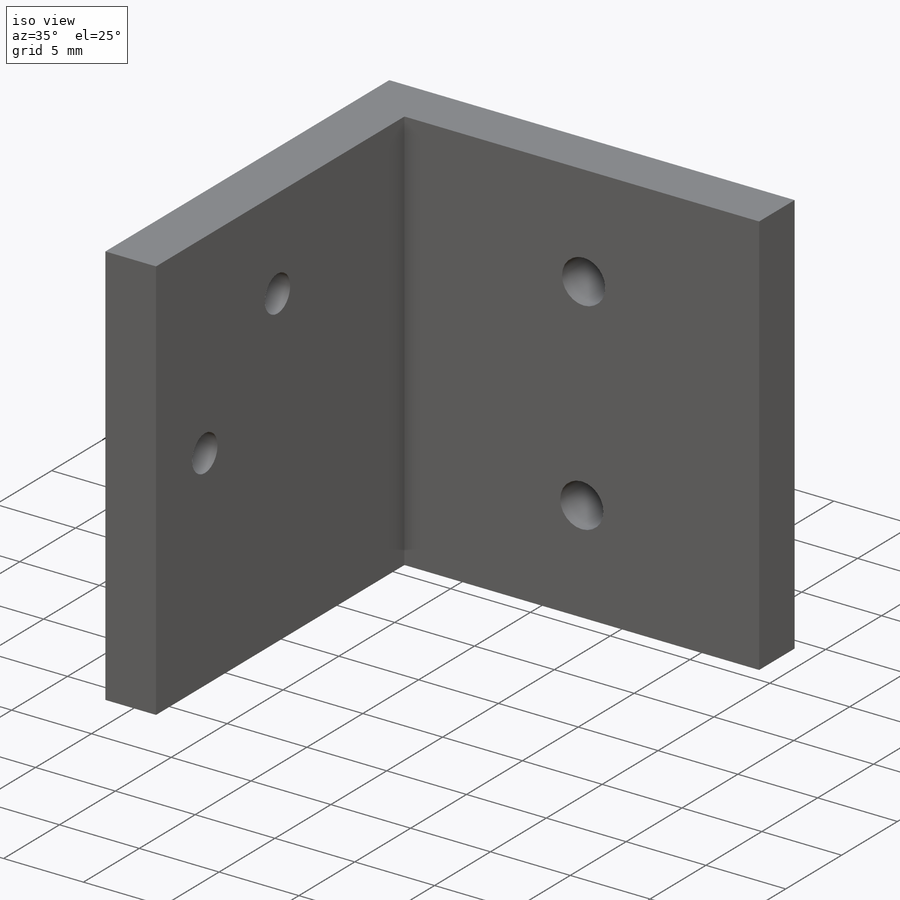
[diagram: iso view]
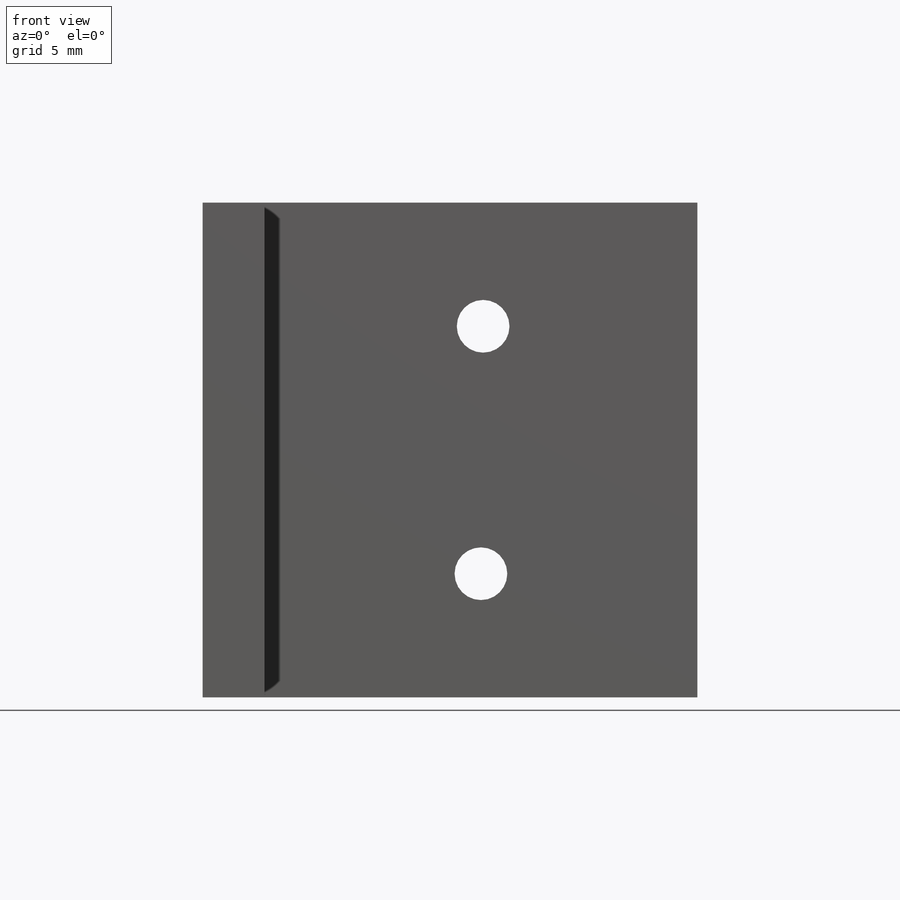
[diagram: front view]
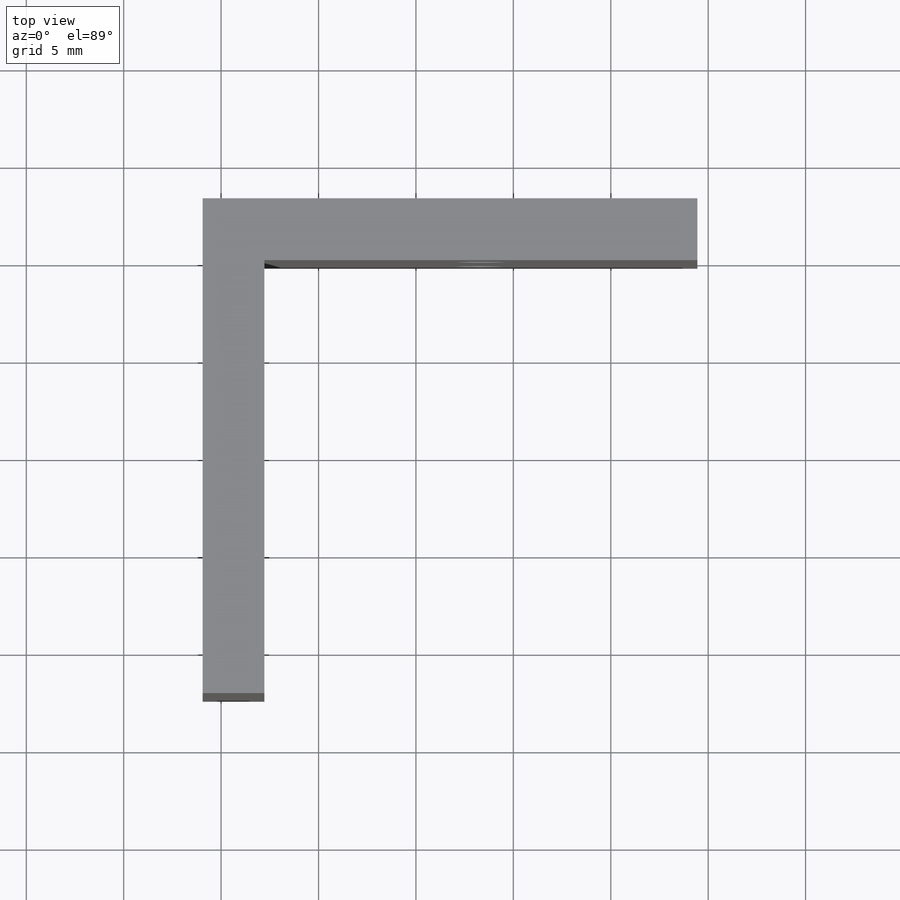
[diagram: top view]
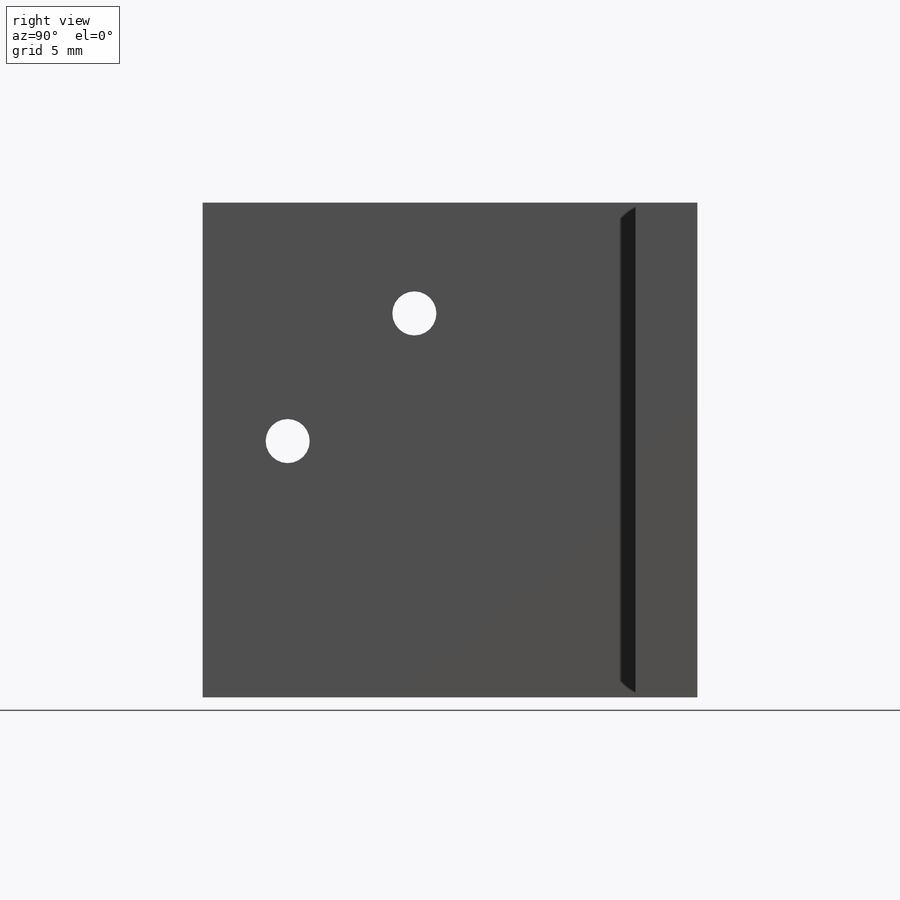
[diagram: right view]
SOLIDWORKS PART (.sldprt)
format: sldprt  version: not decoded by parser v0  size: 193,024 bytes
history: native  units: mm
features: sketch x7, hole x2, material x1, extrude x1 (+12 scaffold rows collapsed)
feature tree (23):
  scaffold x12  (default folders/planes/origin — collapsed)
  material  "Material <not specified>"
  sketch  "Sketch1"  dims[D1=25.4mm D2=25.4mm D3=3.175mm D4=3.175mm]
  extrude  "Boss-Extrude2"  Depth=25.4mm
  sketch  "Sketch2"  dims[D1=5.6896mm D2=12.2428mm D3=6.5024mm D4=14.5288mm]
  hole  "Tap Drill for #4-40 Tap1"  Diameter=2.2606mm Depth=3.302mm
  sketch  "Sketch4"
  sketch  "Sketch5"  dims[hole-wizard template sketch: 47 standard entries collapsed; hole parameters kept: c15.Hole Depth=3.302mm c15.D3=~14.816244mm c15.Drill Angle=118.0deg]
  sketch  "Sketch6"  dims[D1=11.1125mm D2=6.35mm D3=6.35mm]
  hole  "Tap Drill for #6-32 Tap1"  Diameter=2.7051mm Depth=3.302mm
  sketch  "3DSketch1"
  sketch  "Sketch7"  dims[hole-wizard template sketch: 50 standard entries collapsed; hole parameters above]
decode coverage: 8 of 10 modeling features carry decoded parameters
note: ~ marks probable driven/reference dimensions
note: suppression state not decoded; provenance and decode notes live in map.json
